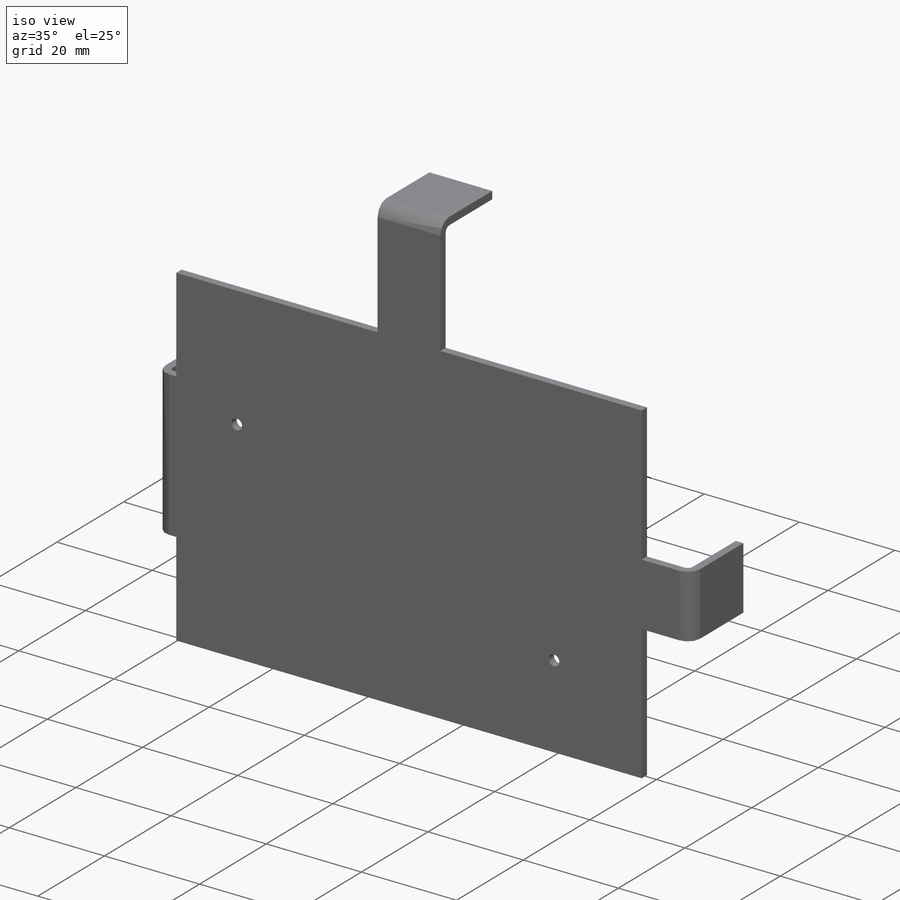
[diagram: iso view]
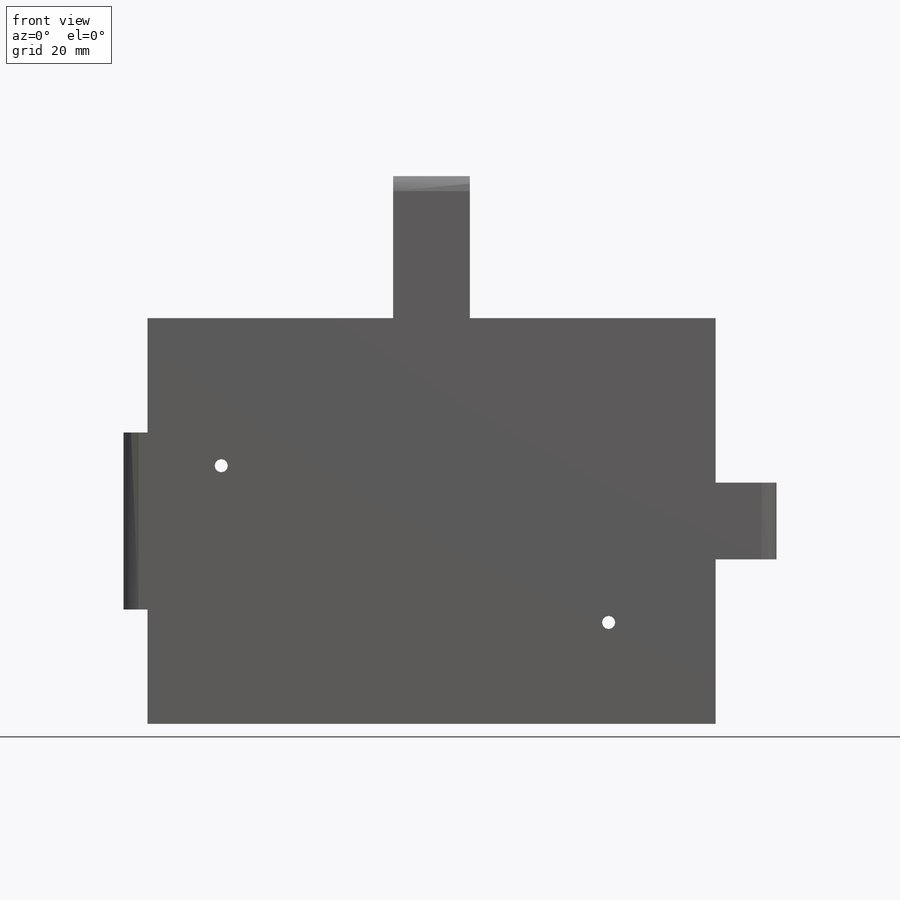
[diagram: front view]
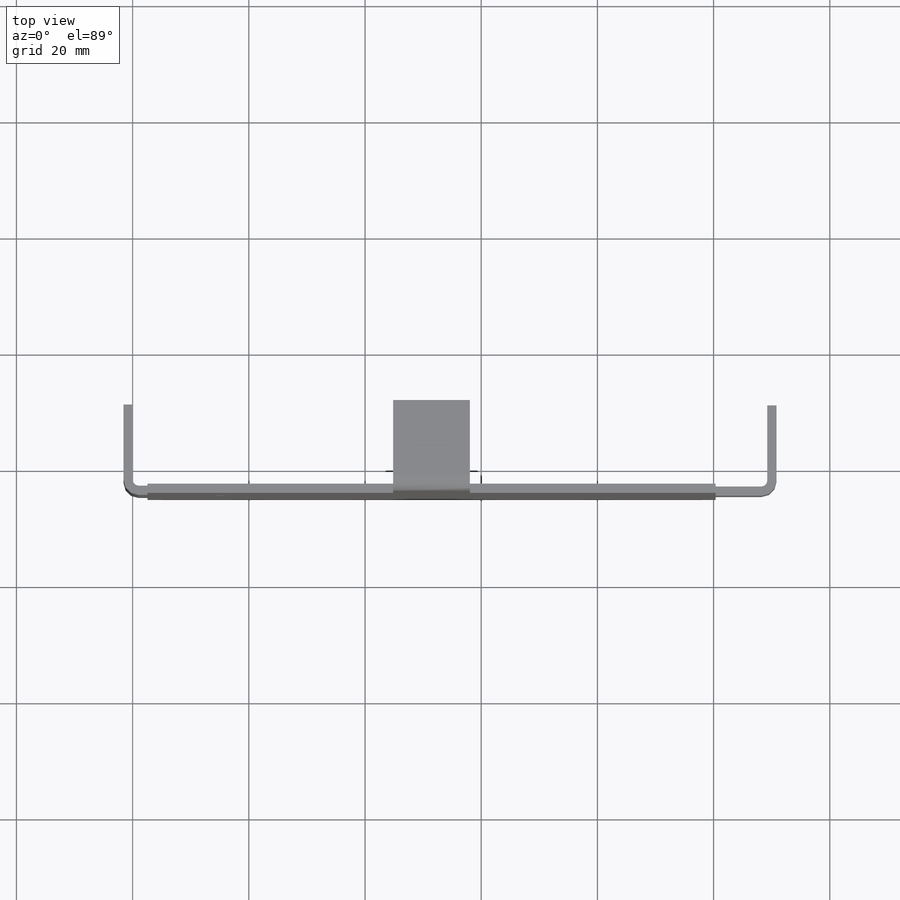
[diagram: top view]
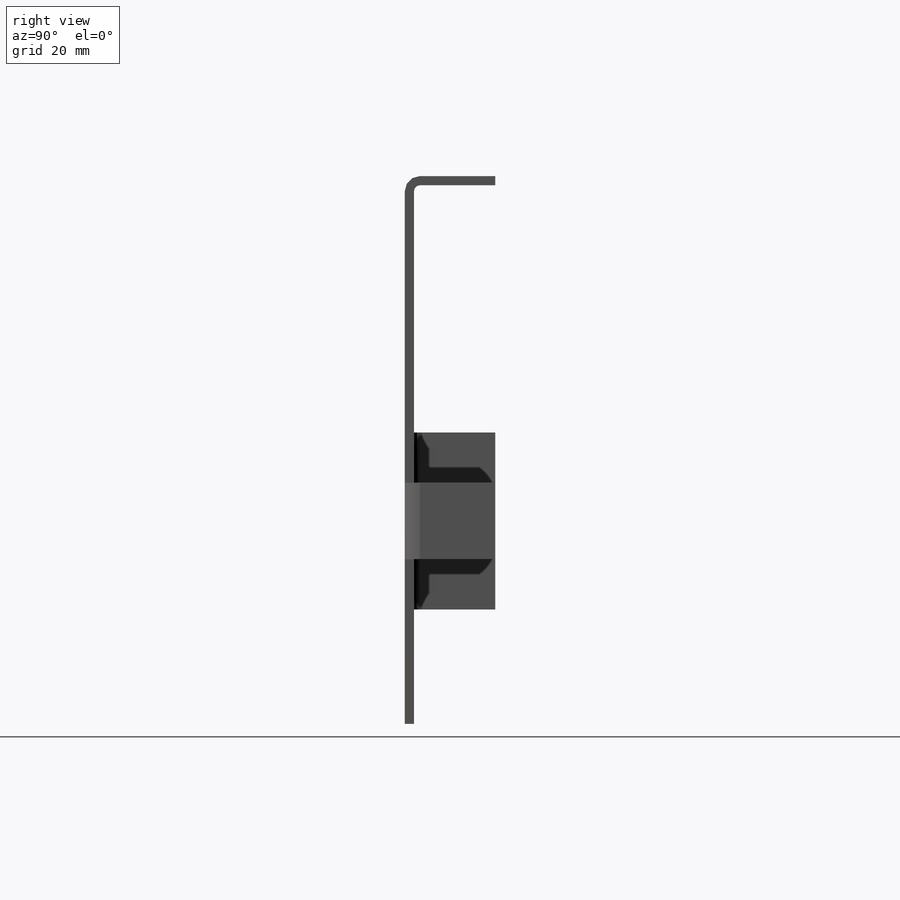
[diagram: right view]
SOLIDWORKS PART (.sldprt)
format: sldprt  version: not decoded by parser v0  size: 276,480 bytes
history: native  units: mm
features: sketch x8, sheet_metal_op x4, thread x3, material x1, hole x1 + 1 further entry (+11 scaffold rows collapsed; 1 parser-record rows omitted)
feature tree (30):
  scaffold x11  (default folders/planes/origin — collapsed)
  material  "Material <not specified>"
  sketch  "Sketch4"  dims[D1=30.48mm D2=13.208mm D3=13.208mm D4=22.86mm D5=8.89mm D6=97.79mm D7=42.291mm D8=2.54mm]
  sheet_metal_op  "Sheet-Metal1"
  sheet_metal_op  "Base-Flange1"
  sketch  "Sketch12"
  sketch  "Sketch13"
  sketch  "Sketch14"  dims[D1=1.0mm D4=90.0deg D5=1.0 D8=~0.79375mm D9=~0.79375mm]
  sheet_metal_op  "EdgeBend2"
  sheet_metal_op  "EdgeBend3"
  hole  "#4-40 Tapped Hole2"  Diameter=2.2606mm Depth=7.62mm
  sketch  "3DSketch2"  dims[D1=44.45mm D2=12.7mm D3=18.415mm D4=17.4625mm]
  sketch  "Sketch18"  dims[hole-wizard template sketch: 50 standard entries collapsed; hole parameters above]
  thread  "Hole Thread5"  Diameter=5.588mm  [1 undecoded]
  sketch  "Hole Thread6"  dims[D1=5.588mm D2=2.8448mm]
  "Flat-Pattern1"
  sketch  "Bend-Lines1"
  thread  "Flatten-<EdgeBend2>1"  [2 undecoded]
  thread  "Flatten-<EdgeBend3>1"  [2 undecoded]
  parser-record x1  (decoder bookkeeping rows leaked as tree rows — omitted from the tree; the rows remain in map.json)
decode coverage: 7 of 16 modeling features carry decoded parameters; 1 rows unclassified (native names shown)
note: ~ marks probable driven/reference dimensions
note: 5 parameter values undecoded
note: suppression state not decoded; provenance and decode notes live in map.json
